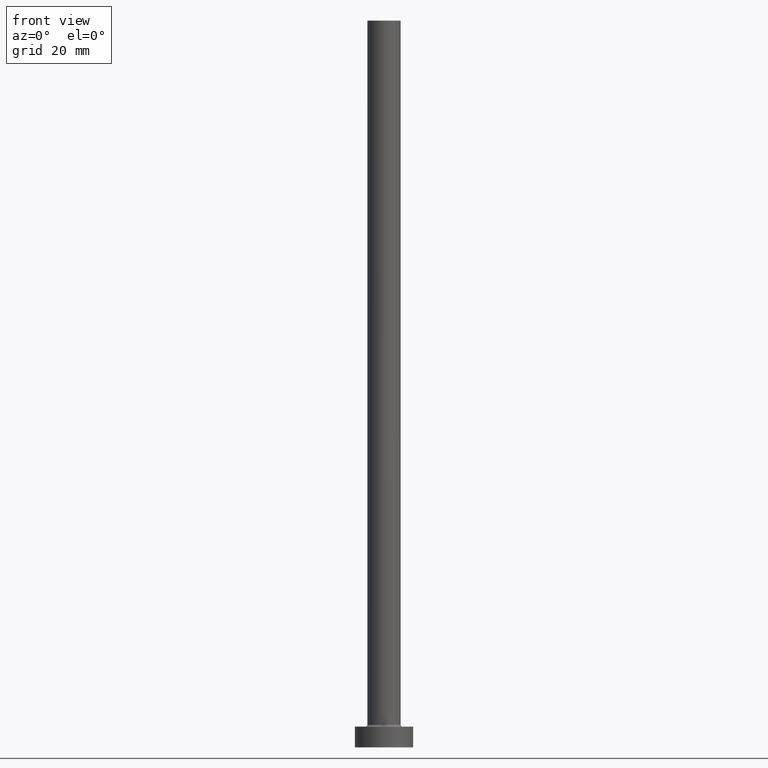
[diagram: clean part render]
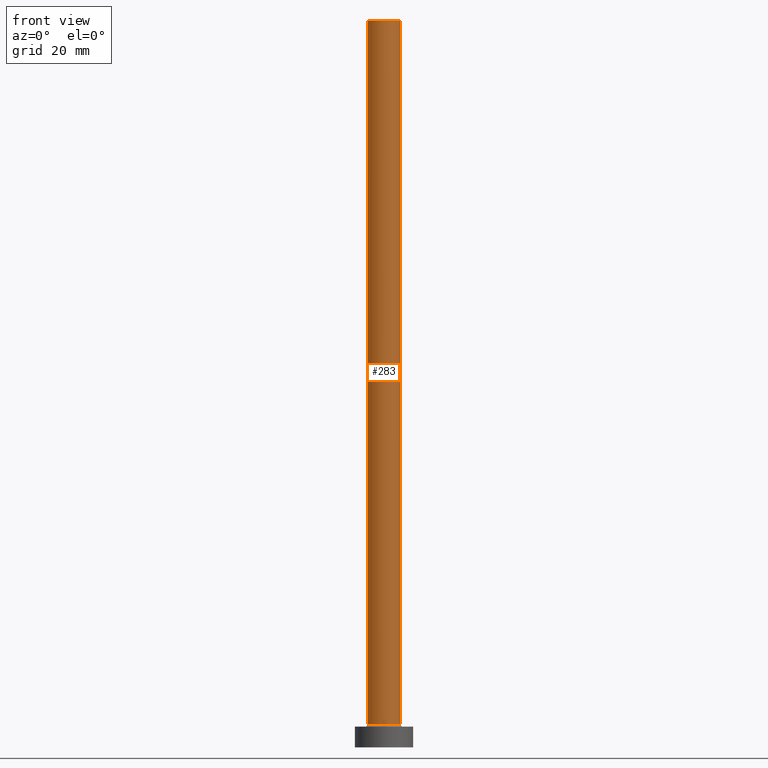
[diagram: same view with one face highlighted and labeled with its STEP entity id]
A machine part, front view. The second image highlights one B-rep face of the part: STEP entity #283.
In plain terms, the highlighted cylindrical surface (edge-blend (fillet) strip) has radius 4 mm, axis along (-0, -0, -1).
Its self-contained STEP definition (entity closure, byte-faithful):
#27 = DIRECTION ( 'NONE',  ( -0.000000000000000000, -0.000000000000000000, -1.000000000000000000 ) ) ;
#28 = VECTOR ( 'NONE', #291, 1000.000000000000000 ) ;
#48 = CARTESIAN_POINT ( 'NONE',  ( -4.000000000000000000, 0.000000000000000000, 175.0000000000000284 ) ) ;
#66 = FACE_OUTER_BOUND ( 'NONE', #322, .T. ) ;
#101 = VERTEX_POINT ( 'NONE', #245 ) ;
#104 = AXIS2_PLACEMENT_3D ( 'NONE', #260, #262, #293 ) ;
#119 = LINE ( 'NONE', #442, #28 ) ;
#124 = CYLINDRICAL_SURFACE ( 'NONE', #263, 4.000000000000000000 ) ;
#135 = CARTESIAN_POINT ( 'NONE',  ( 0.000000000000000000, 0.000000000000000000, 175.0000000000000284 ) ) ;
#139 = VERTEX_POINT ( 'NONE', #358 ) ;
#167 = CIRCLE ( 'NONE', #104, 4.000000000000000000 ) ;
#168 = CARTESIAN_POINT ( 'NONE',  ( 4.000000000000000000, 4.898587196589412829E-16, 175.0000000000000284 ) ) ;
#180 = ORIENTED_EDGE ( 'NONE', *, *, #237, .T. ) ;
#184 = VERTEX_POINT ( 'NONE', #320 ) ;
#196 = ORIENTED_EDGE ( 'NONE', *, *, #422, .F. ) ;
#237 = EDGE_CURVE ( 'NONE', #139, #184, #249, .T. ) ;
#243 = DIRECTION ( 'NONE',  ( 0.000000000000000000, 0.000000000000000000, 1.000000000000000000 ) ) ;
#245 = CARTESIAN_POINT ( 'NONE',  ( -4.000000000000000000, 0.000000000000000000, 175.0000000000000284 ) ) ;
#249 = CIRCLE ( 'NONE', #381, 4.000000000000000000 ) ;
#260 = CARTESIAN_POINT ( 'NONE',  ( 0.000000000000000000, 0.000000000000000000, 175.0000000000000284 ) ) ;
#262 = DIRECTION ( 'NONE',  ( 0.000000000000000000, 0.000000000000000000, 1.000000000000000000 ) ) ;
#263 = AXIS2_PLACEMENT_3D ( 'NONE', #135, #27, #347 ) ;
#283 = ADVANCED_FACE ( 'NONE', ( #66 ), #124, .T. ) ;
#291 = DIRECTION ( 'NONE',  ( -0.000000000000000000, -0.000000000000000000, -1.000000000000000000 ) ) ;
#293 = DIRECTION ( 'NONE',  ( 1.000000000000000000, 0.000000000000000000, 0.000000000000000000 ) ) ;
#313 = DIRECTION ( 'NONE',  ( 1.000000000000000000, 0.000000000000000000, 0.000000000000000000 ) ) ;
#320 = CARTESIAN_POINT ( 'NONE',  ( 4.000000000000000000, 4.898587196589412829E-16, 5.500000000000005329 ) ) ;
#322 = EDGE_LOOP ( 'NONE', ( #415, #196, #390, #180 ) ) ;
#333 = DIRECTION ( 'NONE',  ( -0.000000000000000000, -0.000000000000000000, -1.000000000000000000 ) ) ;
#347 = DIRECTION ( 'NONE',  ( -1.000000000000000000, 0.000000000000000000, 0.000000000000000000 ) ) ;
#358 = CARTESIAN_POINT ( 'NONE',  ( -4.000000000000000000, 0.000000000000000000, 5.500000000000005329 ) ) ;
#359 = VERTEX_POINT ( 'NONE', #168 ) ;
#371 = VECTOR ( 'NONE', #333, 1000.000000000000000 ) ;
#374 = EDGE_CURVE ( 'NONE', #101, #139, #398, .T. ) ;
#379 = CARTESIAN_POINT ( 'NONE',  ( 0.000000000000000000, 0.000000000000000000, 5.500000000000005329 ) ) ;
#381 = AXIS2_PLACEMENT_3D ( 'NONE', #379, #243, #313 ) ;
#390 = ORIENTED_EDGE ( 'NONE', *, *, #374, .T. ) ;
#398 = LINE ( 'NONE', #48, #371 ) ;
#415 = ORIENTED_EDGE ( 'NONE', *, *, #437, .F. ) ;
#422 = EDGE_CURVE ( 'NONE', #101, #359, #167, .T. ) ;
#437 = EDGE_CURVE ( 'NONE', #359, #184, #119, .T. ) ;
#442 = CARTESIAN_POINT ( 'NONE',  ( 4.000000000000000000, 4.898587196589412829E-16, 175.0000000000000284 ) ) ;